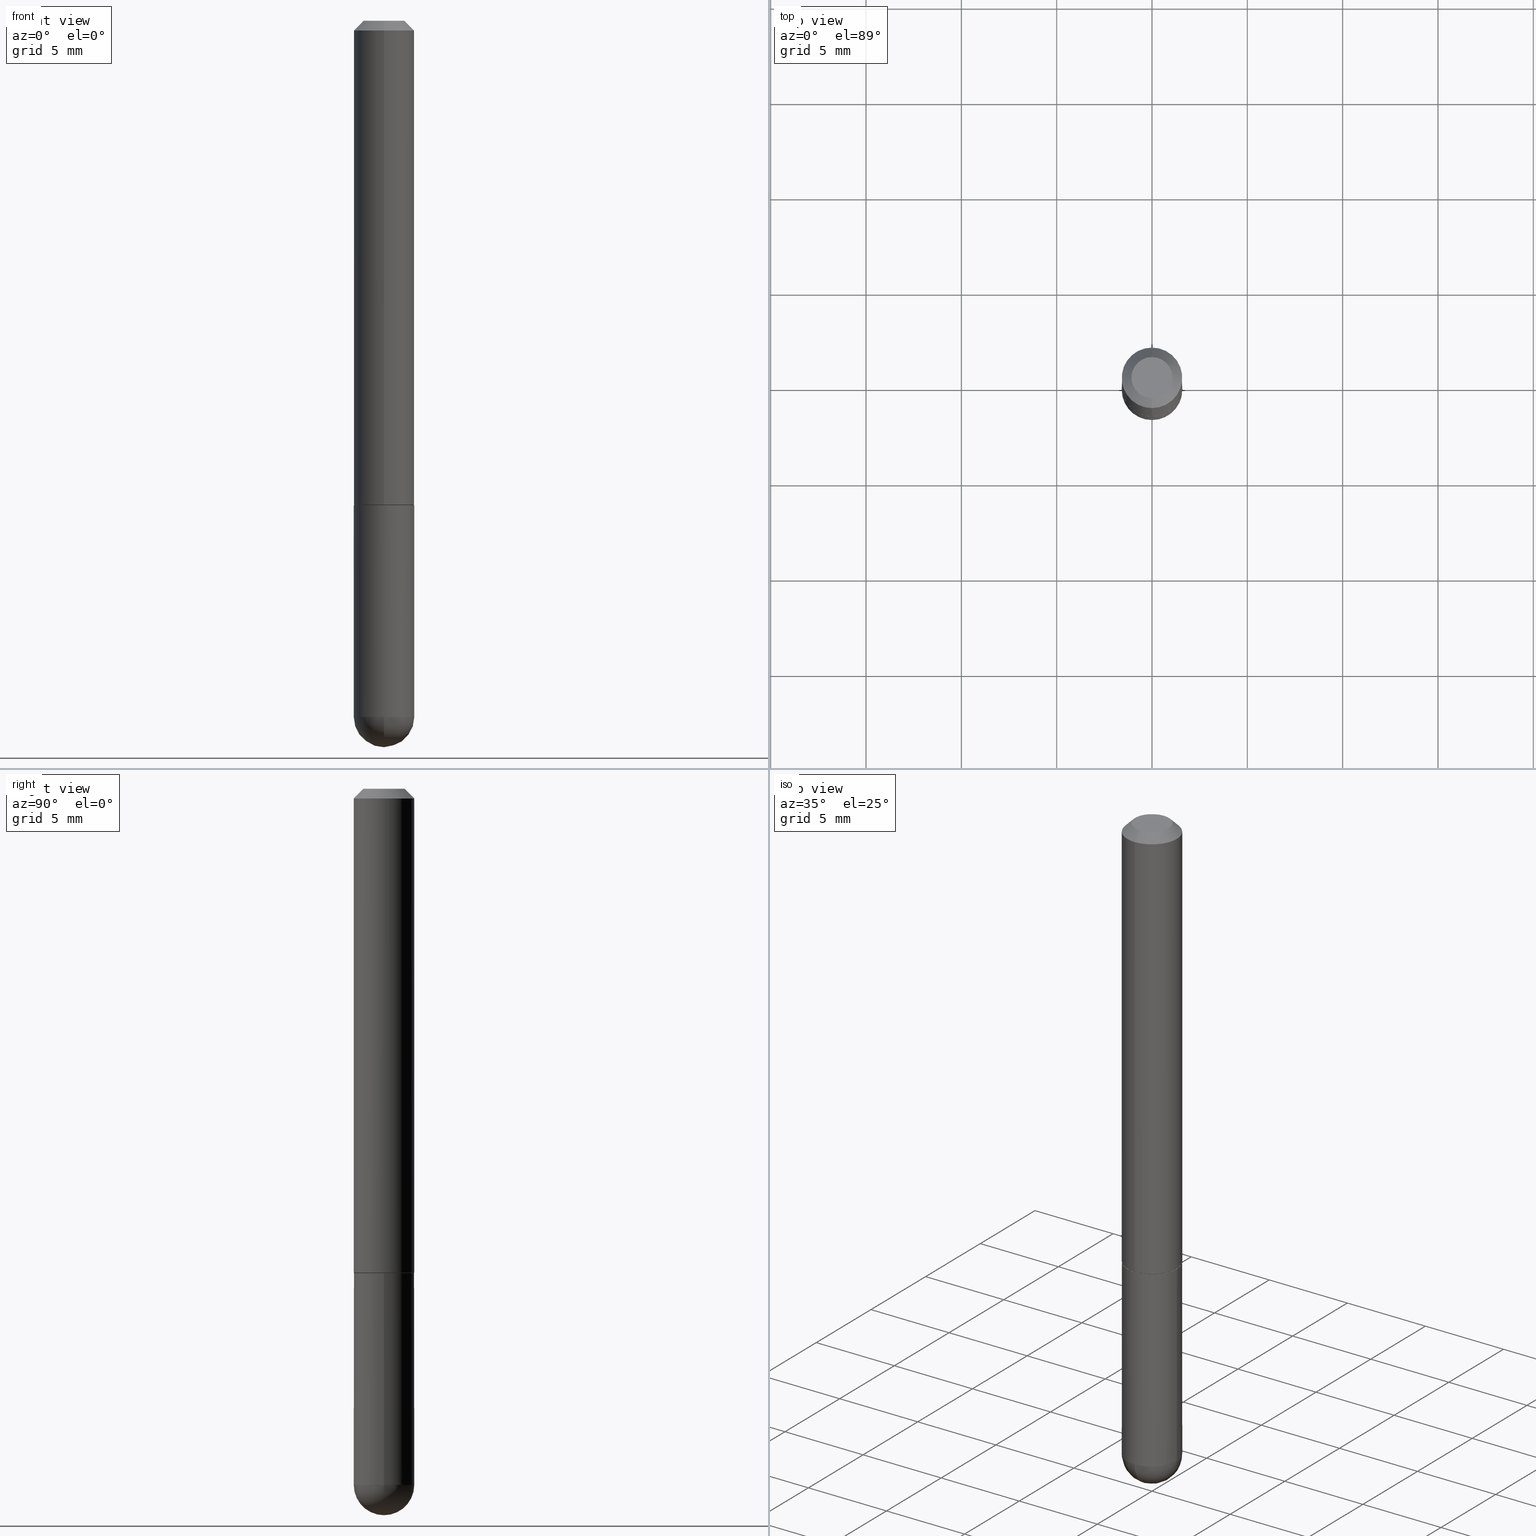
[diagram: canonical four-view strip — front | top / right | iso, engineering-drawing reading convention]
A machine part, canonical four-view strip (front | top / right | iso — engineering-drawing reading convention). The complete STEP part file that produces these views, byte-faithful:
ISO-10303-21;
HEADER;
FILE_DESCRIPTION (( 'STEP AP203' ),
    '1' );
FILE_NAME ('39016.STEP',
    '2024-02-21T19:11:11',
    ( '' ),
    ( '' ),
    'SwSTEP 2.0',
    'SolidWorks 2023',
    '' );
FILE_SCHEMA (( 'CONFIG_CONTROL_DESIGN' ));
ENDSEC;

DATA;
#1 = AXIS2_PLACEMENT_3D ( 'NONE', #37, #151, #59 ) ;
#2 = LOCAL_TIME ( 14, 11, 11.00000000000000000, #169 ) ;
#3 = DIRECTION ( 'NONE',  ( -6.982962677686265133E-15, -1.000000000000000000, 4.370956789862812472E-15 ) ) ;
#4 = DIRECTION ( 'NONE',  ( -2.445468806185136597E-29, 3.491481338843145583E-15, 1.000000000000000000 ) ) ;
#5 =( LENGTH_UNIT ( ) NAMED_UNIT ( * ) SI_UNIT ( $, .METRE. ) );
#6 = ORIENTED_EDGE ( 'NONE', *, *, #96, .T. ) ;
#7 = CC_DESIGN_DATE_AND_TIME_ASSIGNMENT ( #341, #84, ( #208 ) ) ;
#8 = CIRCLE ( 'NONE', #233, 0.06249999999999995143 ) ;
#9 = ORIENTED_EDGE ( 'NONE', *, *, #332, .F. ) ;
#10 = PERSON_AND_ORGANIZATION ( #35, #219 ) ;
#11 = ORIENTED_EDGE ( 'NONE', *, *, #391, .F. ) ;
#12 = DIRECTION ( 'NONE',  ( -2.422444535577552536E-29, 3.524453404813306292E-15, 1.000000000000000000 ) ) ;
#13 = CC_DESIGN_PERSON_AND_ORGANIZATION_ASSIGNMENT ( #405, #172, ( #157 ) ) ;
#14 = ORIENTED_EDGE ( 'NONE', *, *, #287, .F. ) ;
#15 = AXIS2_PLACEMENT_3D ( 'NONE', #342, #309, #116 ) ;
#16 = APPROVAL_ROLE ( '' ) ;
#17 = ORIENTED_EDGE ( 'NONE', *, *, #306, .T. ) ;
#18 = PERSON_AND_ORGANIZATION ( #35, #219 ) ;
#19 = CARTESIAN_POINT ( 'NONE',  ( 3.184241630977247611E-29, -5.493186792727071849E-15, -1.437500000000000000 ) ) ;
#20 = EDGE_CURVE ( 'NONE', #46, #295, #165, .T. ) ;
#21 = SECURITY_CLASSIFICATION_LEVEL ( 'unclassified' ) ;
#22 = DIRECTION ( 'NONE',  ( -6.982962677686265922E-15, -1.000000000000000000, 3.551402391763545142E-15 ) ) ;
#23 = PRODUCT_RELATED_PRODUCT_CATEGORY ( 'detail', '', ( #382 ) ) ;
#24 = CARTESIAN_POINT ( 'NONE',  ( 4.405364961712868626E-16, 0.06149999999999652273, -1.000000000000000000 ) ) ;
#25 = EDGE_CURVE ( 'NONE', #254, #68, #376, .T. ) ;
#26 = DIRECTION ( 'NONE',  ( -2.445468806185136597E-29, 3.491481338843145583E-15, 1.000000000000000000 ) ) ;
#27 = CALENDAR_DATE ( 2024, 21, 2 ) ;
#28 = CARTESIAN_POINT ( 'NONE',  ( 4.440892098500628134E-16, 0.06250000000000002776, -2.202783378008317665E-16 ) ) ;
#29 = CARTESIAN_POINT ( 'NONE',  ( 2.420022091041974719E-29, -3.520928951408492603E-15, -0.9989999999999998881 ) ) ;
#30 = PLANE ( 'NONE',  #245 ) ;
#31 = EDGE_CURVE ( 'NONE', #396, #68, #162, .T. ) ;
#32 = UNCERTAINTY_MEASURE_WITH_UNIT (LENGTH_MEASURE( 1.000000000000000082E-05 ), #188, 'distance_accuracy_value', 'NONE');
#33 = DIRECTION ( 'NONE',  ( -6.982962677686265922E-15, -1.000000000000000000, 4.442029257990668187E-15 ) ) ;
#34 = DIRECTION ( 'NONE',  ( -6.982962677686265922E-15, -1.000000000000000000, 4.442029257990668187E-15 ) ) ;
#35 = PERSON ( 'UNSPECIFIED', 'UNSPECIFIED', 'UNSPECIFIED', ('UNSPECIFIED'), ('UNSPECIFIED'), ('UNSPECIFIED') ) ;
#36 = VECTOR ( 'NONE', #210, 39.37007874015748143 ) ;
#37 = CARTESIAN_POINT ( 'NONE',  ( 3.515361408891134418E-29, -5.019004424587023131E-15, -1.437500000000000222 ) ) ;
#38 = ORIENTED_EDGE ( 'NONE', *, *, #367, .T. ) ;
#39 =( NAMED_UNIT ( * ) PLANE_ANGLE_UNIT ( ) SI_UNIT ( $, .RADIAN. ) );
#40 = CARTESIAN_POINT ( 'NONE',  ( 0.000000000000000000, 0.000000000000000000, 0.000000000000000000 ) ) ;
#41 = EDGE_LOOP ( 'NONE', ( #14, #379 ) ) ;
#42 = CIRCLE ( 'NONE', #271, 0.04249999999999995448 ) ;
#43 = ORIENTED_EDGE ( 'NONE', *, *, #332, .T. ) ;
#44 = VERTEX_POINT ( 'NONE', #24 ) ;
#45 = MECHANICAL_CONTEXT ( 'NONE', #91, 'mechanical' ) ;
#46 = VERTEX_POINT ( 'NONE', #336 ) ;
#47 = AXIS2_PLACEMENT_3D ( 'NONE', #58, #397, #175 ) ;
#48 = ORIENTED_EDGE ( 'NONE', *, *, #109, .T. ) ;
#49 = ADVANCED_FACE ( 'NONE', ( #85 ), #142, .F. ) ;
#50 = PERSON_AND_ORGANIZATION ( #35, #219 ) ;
#51 = DIRECTION ( 'NONE',  ( 6.982962677686265922E-15, 1.000000000000000000, -3.524453404813306686E-15 ) ) ;
#52 = LINE ( 'NONE', #28, #253 ) ;
#53 = APPROVAL_STATUS ( 'not_yet_approved' ) ;
#54 = DIRECTION ( 'NONE',  ( -1.000000000000000000, 7.105427357601001070E-15, -4.926315508542082329E-29 ) ) ;
#55 = AXIS2_PLACEMENT_3D ( 'NONE', #40, #131, #252 ) ;
#56 = APPROVAL_PERSON_ORGANIZATION ( #18, #124, #164 ) ;
#57 = PERSON_AND_ORGANIZATION ( #35, #219 ) ;
#58 = CARTESIAN_POINT ( 'NONE',  ( 3.184241630977247611E-29, -5.493186792727071849E-15, -1.437500000000000000 ) ) ;
#59 = DIRECTION ( 'NONE',  ( 1.000000000000000000, -6.982962677686268288E-15, 0.000000000000000000 ) ) ;
#60 = FACE_OUTER_BOUND ( 'NONE', #75, .T. ) ;
#61 = CIRCLE ( 'NONE', #393, 0.06249999999999995143 ) ;
#62 = DIMENSIONAL_EXPONENTS ( 1.000000000000000000, 0.000000000000000000, 0.000000000000000000, 0.000000000000000000, 0.000000000000000000, 0.000000000000000000, 0.000000000000000000 ) ;
#63 = FACE_OUTER_BOUND ( 'NONE', #222, .T. ) ;
#64 = FACE_OUTER_BOUND ( 'NONE', #352, .T. ) ;
#65 = ADVANCED_FACE ( 'NONE', ( #403 ), #204, .F. ) ;
#66 = DIRECTION ( 'NONE',  ( -1.000000000000000000, 6.982962677686265922E-15, -4.883557194083112340E-29 ) ) ;
#67 = PRODUCT_DEFINITION_SHAPE ( 'NONE', 'NONE',  #208 ) ;
#68 = VERTEX_POINT ( 'NONE', #89 ) ;
#69 = AXIS2_PLACEMENT_3D ( 'NONE', #193, #323, #327 ) ;
#70 = CC_DESIGN_DATE_AND_TIME_ASSIGNMENT ( #337, #310, ( #220 ) ) ;
#71 = DIRECTION ( 'NONE',  ( 1.000000000000000000, -6.982962677686267499E-15, 4.876176775795936353E-29 ) ) ;
#72 = CARTESIAN_POINT ( 'NONE',  ( 4.369837824924861120E-16, 0.06149999999999652273, -1.000000000000000000 ) ) ;
#73 = ORIENTED_EDGE ( 'NONE', *, *, #25, .F. ) ;
#74 = DIRECTION ( 'NONE',  ( -2.445468806185136597E-29, 3.491481338843145583E-15, 1.000000000000000000 ) ) ;
#75 = EDGE_LOOP ( 'NONE', ( #288, #347, #134, #152 ) ) ;
#76 = VECTOR ( 'NONE', #243, 39.37007874015748143 ) ;
#77 = CARTESIAN_POINT ( 'NONE',  ( 0.06249999999999995143, -4.691678049070475040E-15, -1.437500000000000222 ) ) ;
#78 = ORIENTED_EDGE ( 'NONE', *, *, #214, .T. ) ;
#79 = PERSON_AND_ORGANIZATION_ROLE ( 'design_owner' ) ;
#80 = ORIENTED_EDGE ( 'NONE', *, *, #214, .F. ) ;
#81 = ORIENTED_EDGE ( 'NONE', *, *, #306, .F. ) ;
#82 = AXIS2_PLACEMENT_3D ( 'NONE', #412, #122, #246 ) ;
#83 = EDGE_LOOP ( 'NONE', ( #363, #256, #388, #394, #355 ) ) ;
#84 = DATE_TIME_ROLE ( 'creation_date' ) ;
#85 = FACE_OUTER_BOUND ( 'NONE', #161, .T. ) ;
#86 = DIRECTION ( 'NONE',  ( 1.000000000000000000, -6.982962677686269077E-15, 0.000000000000000000 ) ) ;
#87 = CC_DESIGN_PERSON_AND_ORGANIZATION_ASSIGNMENT ( #50, #137, ( #157 ) ) ;
#88 = CALENDAR_DATE ( 2024, 21, 2 ) ;
#89 = CARTESIAN_POINT ( 'NONE',  ( 4.364351673554256397E-16, 0.06249999999999480971, -1.437500000000000444 ) ) ;
#90 = DIRECTION ( 'NONE',  ( 1.000000000000000000, -6.982962677686265922E-15, 4.883557194083112340E-29 ) ) ;
#91 = APPLICATION_CONTEXT ( 'configuration controlled 3d designs of mechanical parts and assemblies' ) ;
#92 = CARTESIAN_POINT ( 'NONE',  ( 4.844889071155120976E-31, -7.048906809626635313E-17, -0.02000000000000006981 ) ) ;
#93 = DIRECTION ( 'NONE',  ( 2.422444535577552536E-29, -3.524453404813306292E-15, -1.000000000000000000 ) ) ;
#94 = CARTESIAN_POINT ( 'NONE',  ( -4.364351673553918666E-16, -0.06250000000000002776, 2.202783378008317665E-16 ) ) ;
#95 = VERTEX_POINT ( 'NONE', #167 ) ;
#96 = EDGE_CURVE ( 'NONE', #95, #46, #42, .T. ) ;
#97 = CARTESIAN_POINT ( 'NONE',  ( -0.06250000000000001388, -3.811153671865021543E-15, -0.9999999999999996669 ) ) ;
#98 = DIRECTION ( 'NONE',  ( -2.422444535577552536E-29, 3.524453404813306292E-15, 1.000000000000000000 ) ) ;
#99 = CIRCLE ( 'NONE', #145, 0.06250000000000012490 ) ;
#100 = CARTESIAN_POINT ( 'NONE',  ( 2.422444535577551975E-29, -3.524453404813305109E-15, -0.9999999999999996669 ) ) ;
#101 = ORIENTED_EDGE ( 'NONE', *, *, #367, .F. ) ;
#102 = PERSON_AND_ORGANIZATION ( #35, #219 ) ;
#103 = ORIENTED_EDGE ( 'NONE', *, *, #287, .T. ) ;
#104 = DIRECTION ( 'NONE',  ( -2.422444535577552536E-29, 3.524453404813306292E-15, 1.000000000000000000 ) ) ;
#105 = ORIENTED_EDGE ( 'NONE', *, *, #31, .F. ) ;
#106 = AXIS2_PLACEMENT_3D ( 'NONE', #270, #368, #22 ) ;
#107 = AXIS2_PLACEMENT_3D ( 'NONE', #185, #345, #147 ) ;
#108 = ORIENTED_EDGE ( 'NONE', *, *, #25, .T. ) ;
#109 = EDGE_CURVE ( 'NONE', #295, #302, #326, .T. ) ;
#110 = APPROVAL_DATE_TIME ( #395, #316 ) ;
#111 = ORIENTED_EDGE ( 'NONE', *, *, #181, .T. ) ;
#112 = PERSON_AND_ORGANIZATION ( #35, #219 ) ;
#113 = CARTESIAN_POINT ( 'NONE',  ( 4.364351673553917187E-16, 0.06249999999999988204, -0.02000000000000029185 ) ) ;
#114 = AXIS2_PLACEMENT_3D ( 'NONE', #216, #182, #33 ) ;
#115 = CARTESIAN_POINT ( 'NONE',  ( 0.06250000000000001388, -3.927916506198536858E-15, -0.9999999999999996669 ) ) ;
#116 = DIRECTION ( 'NONE',  ( -6.982962677686265922E-15, -1.000000000000000000, 3.524453404813306686E-15 ) ) ;
#117 = DIRECTION ( 'NONE',  ( -2.445468806185136877E-29, 3.491481338843145188E-15, 1.000000000000000000 ) ) ;
#118 = DIRECTION ( 'NONE',  ( -2.422444535577552536E-29, 3.524453404813306686E-15, 1.000000000000000000 ) ) ;
#119 = AXIS2_PLACEMENT_3D ( 'NONE', #29, #344, #3 ) ;
#120 = EDGE_CURVE ( 'NONE', #136, #265, #251, .T. ) ;
#121 = FACE_OUTER_BOUND ( 'NONE', #158, .T. ) ;
#122 = DIRECTION ( 'NONE',  ( -2.422444535577552536E-29, 3.524453404813306292E-15, 1.000000000000000000 ) ) ;
#123 = CARTESIAN_POINT ( 'NONE',  ( -4.287811248607198352E-16, -0.06250000000000001388, -0.01999999999999984776 ) ) ;
#124 = APPROVAL ( #277, 'UNSPECIFIED' ) ;
#125 = DIRECTION ( 'NONE',  ( 1.000000000000000000, -6.982962677686268288E-15, 0.000000000000000000 ) ) ;
#126 = ORIENTED_EDGE ( 'NONE', *, *, #387, .F. ) ;
#127 = AXIS2_PLACEMENT_3D ( 'NONE', #244, #66, #212 ) ;
#128 = EDGE_CURVE ( 'NONE', #254, #373, #191, .T. ) ;
#129 = CARTESIAN_POINT ( 'NONE',  ( -4.294522046776814963E-16, -0.06150000000000357264, -0.9999999999999994449 ) ) ;
#130 = ORIENTED_EDGE ( 'NONE', *, *, #293, .T. ) ;
#131 = DIRECTION ( 'NONE',  ( -2.422444535577552536E-29, 3.524453404813306292E-15, 1.000000000000000000 ) ) ;
#132 = ORIENTED_EDGE ( 'NONE', *, *, #293, .F. ) ;
#133 = CARTESIAN_POINT ( 'NONE',  ( 0.000000000000000000, 0.000000000000000000, 0.000000000000000000 ) ) ;
#134 = ORIENTED_EDGE ( 'NONE', *, *, #387, .T. ) ;
#135 = COORDINATED_UNIVERSAL_TIME_OFFSET ( 5, 0, .BEHIND. ) ;
#136 = VERTEX_POINT ( 'NONE', #115 ) ;
#137 = PERSON_AND_ORGANIZATION_ROLE ( 'creator' ) ;
#138 = DATE_AND_TIME ( #27, #365 ) ;
#139 = DIRECTION ( 'NONE',  ( -7.105427357601001859E-15, -1.000000000000000000, 0.000000000000000000 ) ) ;
#140 = CONICAL_SURFACE ( 'NONE', #399, 0.06249999999999995143, 0.7853981633974477239 ) ;
#141 = ADVANCED_FACE ( 'NONE', ( #235 ), #366, .T. ) ;
#142 = PLANE ( 'NONE',  #186 ) ;
#143 = CARTESIAN_POINT ( 'NONE',  ( -0.06249999999999997918, 4.440892098500624683E-16, -3.074334431409315413E-30 ) ) ;
#144 = ORIENTED_EDGE ( 'NONE', *, *, #318, .T. ) ;
#145 = AXIS2_PLACEMENT_3D ( 'NONE', #148, #98, #179 ) ;
#146 = CARTESIAN_POINT ( 'NONE',  ( 0.000000000000000000, 0.000000000000000000, 0.000000000000000000 ) ) ;
#147 = DIRECTION ( 'NONE',  ( -6.982962677686266711E-15, -1.000000000000000000, 3.524453404813306686E-15 ) ) ;
#148 = CARTESIAN_POINT ( 'NONE',  ( 2.420022091041974719E-29, -3.520928951408492603E-15, -0.9989999999999998881 ) ) ;
#149 = EDGE_CURVE ( 'NONE', #261, #295, #52, .T. ) ;
#150 = CARTESIAN_POINT ( 'NONE',  ( -0.06249999999999995143, -3.811153671865021543E-15, -1.437500000000000222 ) ) ;
#151 = DIRECTION ( 'NONE',  ( -2.445468806185136597E-29, 3.491481338843145583E-15, 1.000000000000000000 ) ) ;
#152 = ORIENTED_EDGE ( 'NONE', *, *, #20, .F. ) ;
#153 = DIRECTION ( 'NONE',  ( 5.024295867788748699E-15, 0.7071067811866466046, 0.7071067811864484298 ) ) ;
#154 = ADVANCED_FACE ( 'NONE', ( #276 ), #173, .T. ) ;
#155 = LINE ( 'NONE', #72, #407 ) ;
#156 = ORIENTED_EDGE ( 'NONE', *, *, #237, .T. ) ;
#157 = PRODUCT_DEFINITION_FORMATION_WITH_SPECIFIED_SOURCE ( 'ANY', '', #382, .NOT_KNOWN. ) ;
#158 = EDGE_LOOP ( 'NONE', ( #331, #197 ) ) ;
#159 = ORIENTED_EDGE ( 'NONE', *, *, #128, .F. ) ;
#160 = LINE ( 'NONE', #129, #371 ) ;
#161 = EDGE_LOOP ( 'NONE', ( #78, #6 ) ) ;
#162 = CIRCLE ( 'NONE', #217, 0.06249999999999995143 ) ;
#163 = AXIS2_PLACEMENT_3D ( 'NONE', #184, #319, #34 ) ;
#164 = APPROVAL_ROLE ( '' ) ;
#165 = LINE ( 'NONE', #113, #177 ) ;
#166 = CALENDAR_DATE ( 2024, 21, 2 ) ;
#167 = CARTESIAN_POINT ( 'NONE',  ( -3.601761448830047996E-16, -0.04249999999999995448, 9.996843262709227020E-17 ) ) ;
#168 = EDGE_CURVE ( 'NONE', #299, #265, #207, .T. ) ;
#169 = COORDINATED_UNIVERSAL_TIME_OFFSET ( 5, 0, .BEHIND. ) ;
#170 = DIRECTION ( 'NONE',  ( -2.445468806185136597E-29, 3.491481338843145583E-15, 1.000000000000000000 ) ) ;
#171 = CIRCLE ( 'NONE', #1, 0.06249999999999995143 ) ;
#172 = PERSON_AND_ORGANIZATION_ROLE ( 'design_supplier' ) ;
#173 = CYLINDRICAL_SURFACE ( 'NONE', #211, 0.06249999999999997918 ) ;
#174 = ADVANCED_FACE ( 'NONE', ( #242 ), #268, .T. ) ;
#175 = DIRECTION ( 'NONE',  ( 6.982962677686265922E-15, 1.000000000000000000, -4.370956789862807739E-15 ) ) ;
#176 = FACE_OUTER_BOUND ( 'NONE', #83, .T. ) ;
#177 = VECTOR ( 'NONE', #398, 39.37007874015748143 ) ;
#178 = AXIS2_PLACEMENT_3D ( 'NONE', #146, #410, #71 ) ;
#179 = DIRECTION ( 'NONE',  ( -6.982962677686265133E-15, -1.000000000000000000, 4.370956789862812472E-15 ) ) ;
#180 = MANIFOLD_SOLID_BREP ( 'Body-Move/Copy2[2]', #262 ) ;
#181 = EDGE_CURVE ( 'NONE', #396, #136, #370, .T. ) ;
#182 = DIRECTION ( 'NONE',  ( -2.422444535577552536E-29, 3.524453404813306292E-15, 1.000000000000000000 ) ) ;
#183 = CC_DESIGN_PERSON_AND_ORGANIZATION_ASSIGNMENT ( #102, #79, ( #382 ) ) ;
#184 = CARTESIAN_POINT ( 'NONE',  ( 2.422444535577551975E-29, -3.524453404813305109E-15, -0.9999999999999996669 ) ) ;
#185 = CARTESIAN_POINT ( 'NONE',  ( 1.206882145362242579E-45, -1.755912188683491275E-31, -4.982083707747311235E-17 ) ) ;
#186 = AXIS2_PLACEMENT_3D ( 'NONE', #275, #402, #51 ) ;
#187 = AXIS2_PLACEMENT_3D ( 'NONE', #133, #353, #260 ) ;
#188 =( CONVERSION_BASED_UNIT ( 'INCH', #330 ) LENGTH_UNIT ( ) NAMED_UNIT ( #62 ) );
#189 = EDGE_LOOP ( 'NONE', ( #73, #247, #81, #11 ) ) ;
#190 = ORIENTED_EDGE ( 'NONE', *, *, #202, .F. ) ;
#191 = CIRCLE ( 'NONE', #313, 0.06250000000000018041 ) ;
#192 = EDGE_CURVE ( 'NONE', #261, #259, #272, .T. ) ;
#193 = CARTESIAN_POINT ( 'NONE',  ( 2.445468806185136036E-29, -3.491481338843144399E-15, -0.9999999999999996669 ) ) ;
#194 = ORIENTED_EDGE ( 'NONE', *, *, #404, .F. ) ;
#195 = ADVANCED_BREP_SHAPE_REPRESENTATION ( '39016', ( #322, #180, #187 ), #320 ) ;
#196 = DIRECTION ( 'NONE',  ( 1.000000000000000000, -6.982962677686268288E-15, 0.000000000000000000 ) ) ;
#197 = ORIENTED_EDGE ( 'NONE', *, *, #404, .T. ) ;
#198 = EDGE_LOOP ( 'NONE', ( #334, #390, #130, #224 ) ) ;
#199 = CONICAL_SURFACE ( 'NONE', #163, 0.06150000000000004768, 0.7853981633975849475 ) ;
#200 = APPROVAL_DATE_TIME ( #138, #124 ) ;
#201 = DIRECTION ( 'NONE',  ( 6.982962677686266711E-15, 1.000000000000000000, 0.000000000000000000 ) ) ;
#202 = EDGE_CURVE ( 'NONE', #95, #302, #380, .T. ) ;
#203 = CALENDAR_DATE ( 2024, 21, 2 ) ;
#204 = PLANE ( 'NONE',  #15 ) ;
#205 = CC_DESIGN_PERSON_AND_ORGANIZATION_ASSIGNMENT ( #351, #238, ( #208 ) ) ;
#206 = DIRECTION ( 'NONE',  ( -6.982962677686266711E-15, -1.000000000000000000, 3.524453404813306686E-15 ) ) ;
#207 = LINE ( 'NONE', #143, #384 ) ;
#208 = PRODUCT_DEFINITION ( 'UNKNOWN', '', #157, #296 ) ;
#209 = CARTESIAN_POINT ( 'NONE',  ( 0.000000000000000000, 0.000000000000000000, 0.000000000000000000 ) ) ;
#210 = DIRECTION ( 'NONE',  ( -2.445468806185136877E-29, 3.491481338843145188E-15, 1.000000000000000000 ) ) ;
#211 = AXIS2_PLACEMENT_3D ( 'NONE', #209, #26, #343 ) ;
#212 = DIRECTION ( 'NONE',  ( 6.982962677686265922E-15, 1.000000000000000000, -4.370956789862807739E-15 ) ) ;
#213 = CC_DESIGN_APPROVAL ( #316, ( #208 ) ) ;
#214 = EDGE_CURVE ( 'NONE', #46, #95, #358, .T. ) ;
#215 = DIRECTION ( 'NONE',  ( -1.000000000000000000, 6.982962677686265922E-15, -4.876176775795935793E-29 ) ) ;
#216 = CARTESIAN_POINT ( 'NONE',  ( 2.422444535577551975E-29, -3.524453404813305109E-15, -0.9999999999999996669 ) ) ;
#217 = AXIS2_PLACEMENT_3D ( 'NONE', #232, #170, #307 ) ;
#218 = FACE_OUTER_BOUND ( 'NONE', #356, .T. ) ;
#219 = ORGANIZATION ( 'UNSPECIFIED', 'UNSPECIFIED', '' ) ;
#220 = SECURITY_CLASSIFICATION ( '', '', #21 ) ;
#221 =( NAMED_UNIT ( * ) SI_UNIT ( $, .STERADIAN. ) SOLID_ANGLE_UNIT ( ) );
#222 = EDGE_LOOP ( 'NONE', ( #103, #43, #228, #101 ) ) ;
#223 = CYLINDRICAL_SURFACE ( 'NONE', #55, 0.06250000000000002776 ) ;
#224 = ORIENTED_EDGE ( 'NONE', *, *, #109, .F. ) ;
#225 = CARTESIAN_POINT ( 'NONE',  ( 3.515361408891134418E-29, -5.019004424587023131E-15, -1.437500000000000222 ) ) ;
#226 = ORIENTED_EDGE ( 'NONE', *, *, #149, .T. ) ;
#227 = CIRCLE ( 'NONE', #314, 0.06249999999999995143 ) ;
#228 = ORIENTED_EDGE ( 'NONE', *, *, #237, .F. ) ;
#229 = APPROVAL_ROLE ( '' ) ;
#230 = ORIENTED_EDGE ( 'NONE', *, *, #168, .F. ) ;
#231 = ADVANCED_FACE ( 'NONE', ( #60 ), #140, .T. ) ;
#232 = CARTESIAN_POINT ( 'NONE',  ( 3.515361408891134418E-29, -5.019004424587023131E-15, -1.437500000000000222 ) ) ;
#233 = AXIS2_PLACEMENT_3D ( 'NONE', #289, #104, #392 ) ;
#234 = APPROVAL ( #53, 'UNSPECIFIED' ) ;
#235 = FACE_OUTER_BOUND ( 'NONE', #198, .T. ) ;
#236 = DIRECTION ( 'NONE',  ( -2.422444535577552536E-29, 3.524453404813306292E-15, 1.000000000000000000 ) ) ;
#237 = EDGE_CURVE ( 'NONE', #259, #261, #99, .T. ) ;
#238 = PERSON_AND_ORGANIZATION_ROLE ( 'creator' ) ;
#239 = CARTESIAN_POINT ( 'NONE',  ( 3.184241630977247611E-29, -5.493186792727071849E-15, -1.437500000000000000 ) ) ;
#240 = AXIS2_PLACEMENT_3D ( 'NONE', #364, #278, #86 ) ;
#241 = VECTOR ( 'NONE', #321, 39.37007874015748143 ) ;
#242 = FACE_OUTER_BOUND ( 'NONE', #189, .T. ) ;
#243 = DIRECTION ( 'NONE',  ( -4.851104656540961119E-15, -0.7071067811865495711, -0.7071067811865454633 ) ) ;
#244 = CARTESIAN_POINT ( 'NONE',  ( 3.184241630977247611E-29, -5.493186792727071849E-15, -1.437500000000000000 ) ) ;
#245 = AXIS2_PLACEMENT_3D ( 'NONE', #374, #249, #215 ) ;
#246 = DIRECTION ( 'NONE',  ( -6.982962677686265922E-15, -1.000000000000000000, 4.442029257990668187E-15 ) ) ;
#247 = ORIENTED_EDGE ( 'NONE', *, *, #128, .T. ) ;
#248 = DIRECTION ( 'NONE',  ( 6.982962677686265922E-15, 1.000000000000000000, -3.551402391763545142E-15 ) ) ;
#249 = DIRECTION ( 'NONE',  ( 2.438088387897960049E-29, -3.491481338843145188E-15, -1.000000000000000000 ) ) ;
#250 = ADVANCED_FACE ( 'NONE', ( #218 ), #263, .T. ) ;
#251 = CIRCLE ( 'NONE', #240, 0.06250000000000001388 ) ;
#252 = DIRECTION ( 'NONE',  ( -6.982962677686266711E-15, -1.000000000000000000, 3.524453404813306686E-15 ) ) ;
#253 = VECTOR ( 'NONE', #118, 39.37007874015748143 ) ;
#254 = VERTEX_POINT ( 'NONE', #315 ) ;
#255 = APPLICATION_PROTOCOL_DEFINITION ( 'international standard', 'config_control_design', 1994, #91 ) ;
#256 = ORIENTED_EDGE ( 'NONE', *, *, #168, .T. ) ;
#257 = DIRECTION ( 'NONE',  ( -4.937700262165222518E-15, -0.7071067811866417196, 0.7071067811864533148 ) ) ;
#258 = ADVANCED_FACE ( 'NONE', ( #121 ), #30, .F. ) ;
#259 = VERTEX_POINT ( 'NONE', #411 ) ;
#260 = DIRECTION ( 'NONE',  ( 1.000000000000000000, 0.000000000000000000, 0.000000000000000000 ) ) ;
#261 = VERTEX_POINT ( 'NONE', #282 ) ;
#262 = CLOSED_SHELL ( 'NONE', ( #285, #354, #231, #250, #141, #297, #65, #49 ) ) ;
#263 = CONICAL_SURFACE ( 'NONE', #328, 0.06249999999999995143, 0.7853981633974477239 ) ;
#264 = CALENDAR_DATE ( 2024, 21, 2 ) ;
#265 = VERTEX_POINT ( 'NONE', #97 ) ;
#266 = ADVANCED_FACE ( 'NONE', ( #279 ), #375, .T. ) ;
#267 = COORDINATED_UNIVERSAL_TIME_OFFSET ( 5, 0, .BEHIND. ) ;
#268 = SPHERICAL_SURFACE ( 'NONE', #47, 0.06250000000000018041 ) ;
#269 = SHAPE_DEFINITION_REPRESENTATION ( #67, #195 ) ;
#270 = CARTESIAN_POINT ( 'NONE',  ( 4.844889071155120976E-31, -7.048906809626635313E-17, -0.02000000000000006981 ) ) ;
#271 = AXIS2_PLACEMENT_3D ( 'NONE', #304, #339, #305 ) ;
#272 = CIRCLE ( 'NONE', #119, 0.06250000000000012490 ) ;
#273 = LOCAL_TIME ( 14, 11, 11.00000000000000000, #135 ) ;
#274 = PERSON_AND_ORGANIZATION_ROLE ( 'classification_officer' ) ;
#275 = CARTESIAN_POINT ( 'NONE',  ( 2.967759138016660098E-16, 0.04249999999999995448, -1.746996882433019110E-16 ) ) ;
#276 = FACE_OUTER_BOUND ( 'NONE', #292, .T. ) ;
#277 = APPROVAL_STATUS ( 'not_yet_approved' ) ;
#278 = DIRECTION ( 'NONE',  ( -2.445468806185136597E-29, 3.491481338843145583E-15, 1.000000000000000000 ) ) ;
#279 = FACE_OUTER_BOUND ( 'NONE', #386, .T. ) ;
#280 = APPLICATION_CONTEXT ( 'configuration controlled 3d designs of mechanical parts and assemblies' ) ;
#281 = DIRECTION ( 'NONE',  ( 2.422444535577552536E-29, -3.524453404813306292E-15, -1.000000000000000000 ) ) ;
#282 = CARTESIAN_POINT ( 'NONE',  ( 4.440892098500754352E-16, 0.06249999999999659994, -0.9990000000000002212 ) ) ;
#283 = CIRCLE ( 'NONE', #340, 0.06150000000000004768 ) ;
#284 = CARTESIAN_POINT ( 'NONE',  ( 4.844889071155120976E-31, -7.048906809626635313E-17, -0.02000000000000006981 ) ) ;
#285 = ADVANCED_FACE ( 'NONE', ( #63 ), #308, .T. ) ;
#286 = CARTESIAN_POINT ( 'NONE',  ( 3.515361408891134418E-29, -5.019004424587023131E-15, -1.437500000000000222 ) ) ;
#287 = EDGE_CURVE ( 'NONE', #324, #44, #377, .T. ) ;
#288 = ORIENTED_EDGE ( 'NONE', *, *, #96, .F. ) ;
#289 = CARTESIAN_POINT ( 'NONE',  ( 4.844889071155120976E-31, -7.048906809626635313E-17, -0.02000000000000006981 ) ) ;
#290 = CIRCLE ( 'NONE', #69, 0.06250000000000001388 ) ;
#291 = CC_DESIGN_APPROVAL ( #124, ( #157 ) ) ;
#292 = EDGE_LOOP ( 'NONE', ( #230, #17, #144, #111, #194 ) ) ;
#293 = EDGE_CURVE ( 'NONE', #259, #302, #378, .T. ) ;
#294 = APPLICATION_PROTOCOL_DEFINITION ( 'international standard', 'config_control_design', 1994, #280 ) ;
#295 = VERTEX_POINT ( 'NONE', #346 ) ;
#296 = DESIGN_CONTEXT ( 'detailed design', #280, 'design' ) ;
#297 = ADVANCED_FACE ( 'NONE', ( #64 ), #199, .T. ) ;
#298 = DIRECTION ( 'NONE',  ( -6.982962677686265922E-15, -1.000000000000000000, 4.442029257990668187E-15 ) ) ;
#299 = VERTEX_POINT ( 'NONE', #150 ) ;
#300 = APPROVAL_STATUS ( 'not_yet_approved' ) ;
#301 = CLOSED_SHELL ( 'NONE', ( #325, #174, #266, #258, #154 ) ) ;
#302 = VERTEX_POINT ( 'NONE', #349 ) ;
#303 = COORDINATED_UNIVERSAL_TIME_OFFSET ( 5, 0, .BEHIND. ) ;
#304 = CARTESIAN_POINT ( 'NONE',  ( 1.206882145362242579E-45, -1.755912188683491275E-31, -4.982083707747311235E-17 ) ) ;
#305 = DIRECTION ( 'NONE',  ( -6.982962677686266711E-15, -1.000000000000000000, 3.524453404813306686E-15 ) ) ;
#306 = EDGE_CURVE ( 'NONE', #299, #373, #171, .T. ) ;
#307 = DIRECTION ( 'NONE',  ( 1.000000000000000000, -6.982962677686268288E-15, 0.000000000000000000 ) ) ;
#308 = CONICAL_SURFACE ( 'NONE', #114, 0.06150000000000004768, 0.7853981633975849475 ) ;
#309 = DIRECTION ( 'NONE',  ( -2.422444535577551975E-29, 3.524453404813306686E-15, 1.000000000000000000 ) ) ;
#310 = DATE_TIME_ROLE ( 'classification_date' ) ;
#311 = CARTESIAN_POINT ( 'NONE',  ( 0.06249999999999997918, -4.364351673553915708E-16, 3.047610484872459170E-30 ) ) ;
#312 = CYLINDRICAL_SURFACE ( 'NONE', #178, 0.06249999999999997918 ) ;
#313 = AXIS2_PLACEMENT_3D ( 'NONE', #19, #54, #139 ) ;
#314 = AXIS2_PLACEMENT_3D ( 'NONE', #286, #4, #125 ) ;
#315 = CARTESIAN_POINT ( 'NONE',  ( 3.339755826017505008E-29, -5.707577355157432999E-15, -1.500000000000000222 ) ) ;
#316 = APPROVAL ( #300, 'UNSPECIFIED' ) ;
#317 = DIRECTION ( 'NONE',  ( 6.982962677686265922E-15, 1.000000000000000000, -3.551402391763545142E-15 ) ) ;
#318 = EDGE_CURVE ( 'NONE', #373, #396, #227, .T. ) ;
#319 = DIRECTION ( 'NONE',  ( -2.422444535577552536E-29, 3.524453404813306292E-15, 1.000000000000000000 ) ) ;
#320 =( GEOMETRIC_REPRESENTATION_CONTEXT ( 3 ) GLOBAL_UNCERTAINTY_ASSIGNED_CONTEXT ( ( #32 ) ) GLOBAL_UNIT_ASSIGNED_CONTEXT ( ( #188, #39, #221 ) ) REPRESENTATION_CONTEXT ( 'NONE', 'WORKASPACE' ) );
#321 = DIRECTION ( 'NONE',  ( -2.422444535577552536E-29, 3.524453404813306686E-15, 1.000000000000000000 ) ) ;
#322 = MANIFOLD_SOLID_BREP ( 'Body-Move/Copy2[1]', #301 ) ;
#323 = DIRECTION ( 'NONE',  ( -2.445468806185136597E-29, 3.491481338843145583E-15, 1.000000000000000000 ) ) ;
#324 = VERTEX_POINT ( 'NONE', #381 ) ;
#325 = ADVANCED_FACE ( 'NONE', ( #176 ), #312, .T. ) ;
#326 = CIRCLE ( 'NONE', #106, 0.06249999999999995143 ) ;
#327 = DIRECTION ( 'NONE',  ( 1.000000000000000000, -6.982962677686269077E-15, 0.000000000000000000 ) ) ;
#328 = AXIS2_PLACEMENT_3D ( 'NONE', #284, #93, #317 ) ;
#329 = EDGE_LOOP ( 'NONE', ( #156, #226, #126, #132 ) ) ;
#330 = LENGTH_MEASURE_WITH_UNIT ( LENGTH_MEASURE( 0.02539999999999999897 ), #5 );
#331 = ORIENTED_EDGE ( 'NONE', *, *, #120, .T. ) ;
#332 = EDGE_CURVE ( 'NONE', #44, #261, #155, .T. ) ;
#333 = ORIENTED_EDGE ( 'NONE', *, *, #20, .T. ) ;
#334 = ORIENTED_EDGE ( 'NONE', *, *, #149, .F. ) ;
#335 = APPROVAL_PERSON_ORGANIZATION ( #10, #316, #16 ) ;
#336 = CARTESIAN_POINT ( 'NONE',  ( 3.666055405785288149E-16, 0.04249999999999995448, -1.996101067820384703E-16 ) ) ;
#337 = DATE_AND_TIME ( #203, #385 ) ;
#338 = CARTESIAN_POINT ( 'NONE',  ( 0.000000000000000000, 0.000000000000000000, 0.000000000000000000 ) ) ;
#339 = DIRECTION ( 'NONE',  ( -2.422444535577552536E-29, 3.524453404813306292E-15, 1.000000000000000000 ) ) ;
#340 = AXIS2_PLACEMENT_3D ( 'NONE', #100, #12, #298 ) ;
#341 = DATE_AND_TIME ( #88, #409 ) ;
#342 = CARTESIAN_POINT ( 'NONE',  ( 2.422444535577551975E-29, -3.524453404813305109E-15, -0.9999999999999996669 ) ) ;
#343 = DIRECTION ( 'NONE',  ( 1.000000000000000000, -6.982962677686267499E-15, 4.876176775795936353E-29 ) ) ;
#344 = DIRECTION ( 'NONE',  ( -2.422444535577552536E-29, 3.524453404813306292E-15, 1.000000000000000000 ) ) ;
#345 = DIRECTION ( 'NONE',  ( -2.422444535577552536E-29, 3.524453404813306292E-15, 1.000000000000000000 ) ) ;
#346 = CARTESIAN_POINT ( 'NONE',  ( 4.364351673553917187E-16, 0.06249999999999988204, -0.02000000000000029185 ) ) ;
#347 = ORIENTED_EDGE ( 'NONE', *, *, #202, .T. ) ;
#348 = CC_DESIGN_PERSON_AND_ORGANIZATION_ASSIGNMENT ( #57, #274, ( #220 ) ) ;
#349 = CARTESIAN_POINT ( 'NONE',  ( -4.287811248607198352E-16, -0.06250000000000001388, -0.01999999999999984776 ) ) ;
#350 = AXIS2_PLACEMENT_3D ( 'NONE', #338, #236, #206 ) ;
#351 = PERSON_AND_ORGANIZATION ( #35, #219 ) ;
#352 = EDGE_LOOP ( 'NONE', ( #9, #406, #38, #359 ) ) ;
#353 = DIRECTION ( 'NONE',  ( 0.000000000000000000, 0.000000000000000000, 1.000000000000000000 ) ) ;
#354 = ADVANCED_FACE ( 'NONE', ( #357 ), #223, .T. ) ;
#355 = ORIENTED_EDGE ( 'NONE', *, *, #31, .T. ) ;
#356 = EDGE_LOOP ( 'NONE', ( #190, #80, #333, #48 ) ) ;
#357 = FACE_OUTER_BOUND ( 'NONE', #329, .T. ) ;
#358 = CIRCLE ( 'NONE', #107, 0.04249999999999995448 ) ;
#359 = ORIENTED_EDGE ( 'NONE', *, *, #192, .F. ) ;
#360 = EDGE_CURVE ( 'NONE', #44, #324, #283, .T. ) ;
#361 = ORIENTED_EDGE ( 'NONE', *, *, #318, .F. ) ;
#362 = DATE_AND_TIME ( #166, #2 ) ;
#363 = ORIENTED_EDGE ( 'NONE', *, *, #391, .T. ) ;
#364 = CARTESIAN_POINT ( 'NONE',  ( 2.445468806185136036E-29, -3.491481338843144399E-15, -0.9999999999999996669 ) ) ;
#365 = LOCAL_TIME ( 14, 11, 11.00000000000000000, #303 ) ;
#366 = CYLINDRICAL_SURFACE ( 'NONE', #350, 0.06250000000000002776 ) ;
#367 = EDGE_CURVE ( 'NONE', #324, #259, #160, .T. ) ;
#368 = DIRECTION ( 'NONE',  ( -2.422444535577552536E-29, 3.524453404813306292E-15, 1.000000000000000000 ) ) ;
#369 = COORDINATED_UNIVERSAL_TIME_OFFSET ( 5, 0, .BEHIND. ) ;
#370 = LINE ( 'NONE', #311, #36 ) ;
#371 = VECTOR ( 'NONE', #257, 39.37007874015748143 ) ;
#372 = CC_DESIGN_SECURITY_CLASSIFICATION ( #220, ( #157 ) ) ;
#373 = VERTEX_POINT ( 'NONE', #389 ) ;
#374 = CARTESIAN_POINT ( 'NONE',  ( 4.364351673554161734E-16, 0.06249999999999652361, -1.000000000000000000 ) ) ;
#375 = SPHERICAL_SURFACE ( 'NONE', #127, 0.06250000000000018041 ) ;
#376 = CIRCLE ( 'NONE', #383, 0.06250000000000018041 ) ;
#377 = CIRCLE ( 'NONE', #82, 0.06150000000000004768 ) ;
#378 = LINE ( 'NONE', #94, #241 ) ;
#379 = ORIENTED_EDGE ( 'NONE', *, *, #360, .F. ) ;
#380 = LINE ( 'NONE', #123, #76 ) ;
#381 = CARTESIAN_POINT ( 'NONE',  ( -4.294522046776814963E-16, -0.06150000000000357264, -0.9999999999999994449 ) ) ;
#382 = PRODUCT ( '39016', '39016', '', ( #45 ) ) ;
#383 = AXIS2_PLACEMENT_3D ( 'NONE', #239, #90, #201 ) ;
#384 = VECTOR ( 'NONE', #117, 39.37007874015748143 ) ;
#385 = LOCAL_TIME ( 14, 11, 11.00000000000000000, #267 ) ;
#386 = EDGE_LOOP ( 'NONE', ( #159, #108, #105, #361 ) ) ;
#387 = EDGE_CURVE ( 'NONE', #302, #295, #8, .T. ) ;
#388 = ORIENTED_EDGE ( 'NONE', *, *, #120, .F. ) ;
#389 = CARTESIAN_POINT ( 'NONE',  ( -4.440892098500294840E-16, -0.06250000000000532907, -1.437500000000000000 ) ) ;
#390 = ORIENTED_EDGE ( 'NONE', *, *, #192, .T. ) ;
#391 = EDGE_CURVE ( 'NONE', #68, #299, #61, .T. ) ;
#392 = DIRECTION ( 'NONE',  ( -6.982962677686265922E-15, -1.000000000000000000, 3.551402391763545142E-15 ) ) ;
#393 = AXIS2_PLACEMENT_3D ( 'NONE', #225, #74, #196 ) ;
#394 = ORIENTED_EDGE ( 'NONE', *, *, #181, .F. ) ;
#395 = DATE_AND_TIME ( #264, #273 ) ;
#396 = VERTEX_POINT ( 'NONE', #77 ) ;
#397 = DIRECTION ( 'NONE',  ( -1.000000000000000000, 6.982962677686265922E-15, -4.883557194083112340E-29 ) ) ;
#398 = DIRECTION ( 'NONE',  ( 4.937700262164544887E-15, 0.7071067811865446862, -0.7071067811865503483 ) ) ;
#399 = AXIS2_PLACEMENT_3D ( 'NONE', #92, #281, #248 ) ;
#400 = APPROVAL_PERSON_ORGANIZATION ( #112, #234, #229 ) ;
#401 = APPROVAL_DATE_TIME ( #362, #234 ) ;
#402 = DIRECTION ( 'NONE',  ( 2.422444535577551975E-29, -3.524453404813306686E-15, -1.000000000000000000 ) ) ;
#403 = FACE_OUTER_BOUND ( 'NONE', #41, .T. ) ;
#404 = EDGE_CURVE ( 'NONE', #265, #136, #290, .T. ) ;
#405 = PERSON_AND_ORGANIZATION ( #35, #219 ) ;
#406 = ORIENTED_EDGE ( 'NONE', *, *, #360, .T. ) ;
#407 = VECTOR ( 'NONE', #153, 39.37007874015748143 ) ;
#408 = CC_DESIGN_APPROVAL ( #234, ( #220 ) ) ;
#409 = LOCAL_TIME ( 14, 11, 11.00000000000000000, #369 ) ;
#410 = DIRECTION ( 'NONE',  ( -2.445468806185136597E-29, 3.491481338843145583E-15, 1.000000000000000000 ) ) ;
#411 = CARTESIAN_POINT ( 'NONE',  ( -4.364351673553682501E-16, -0.06250000000000363598, -0.9989999999999996660 ) ) ;
#412 = CARTESIAN_POINT ( 'NONE',  ( 2.422444535577551975E-29, -3.524453404813305109E-15, -0.9999999999999996669 ) ) ;
ENDSEC;
END-ISO-10303-21;
